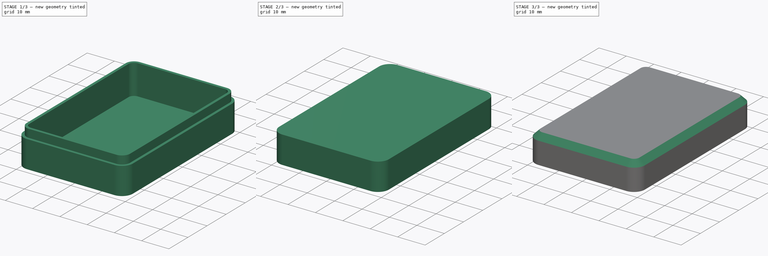
[diagram: build sequence overview — one tinted view per stage of 3, left to right]
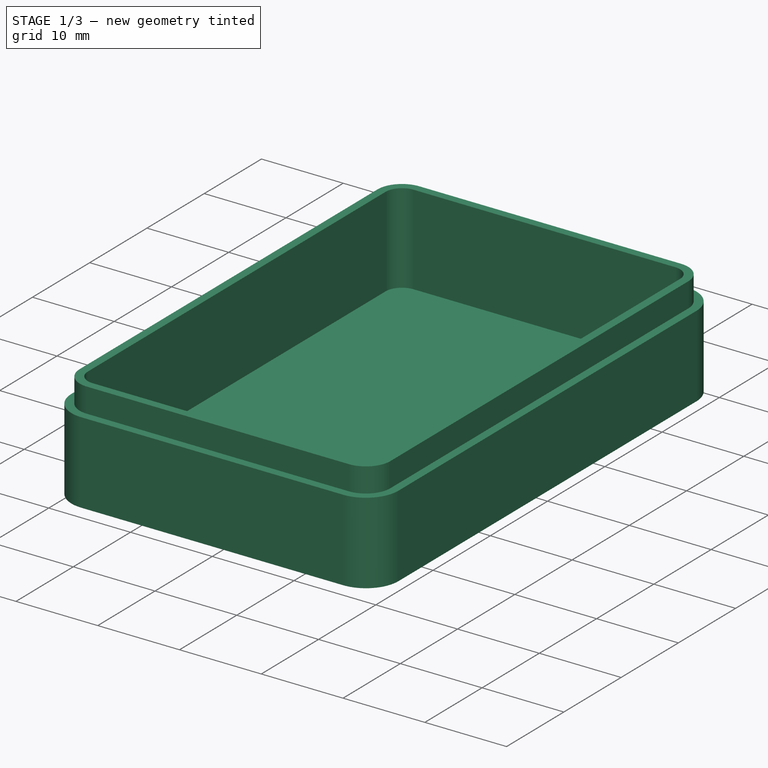
[diagram: stage 1 of 3 — iso view after this stage's code; geometry added in this stage tinted green]
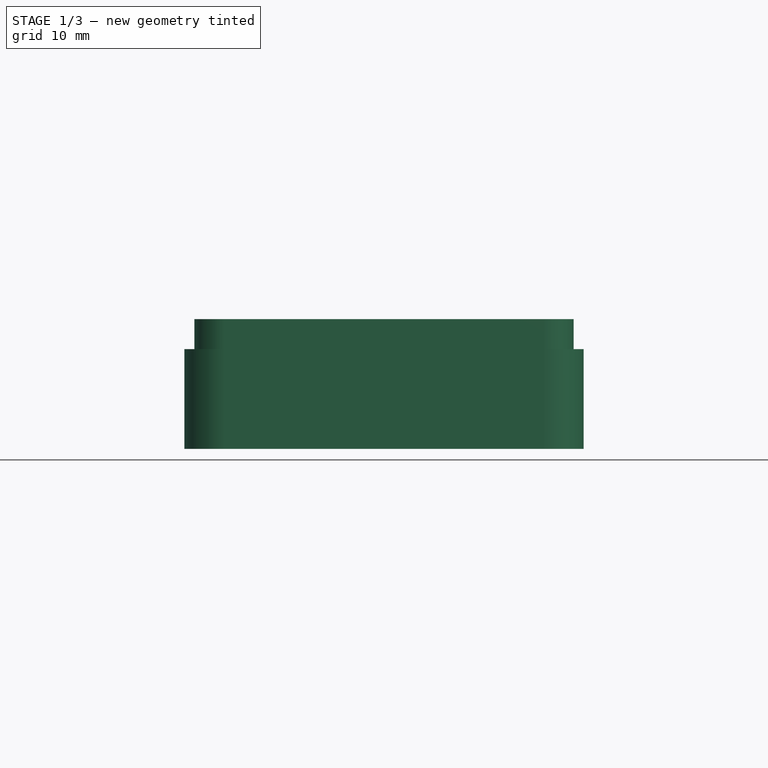
[diagram: stage 1 of 3 — front view after this stage's code; geometry added in this stage tinted green]
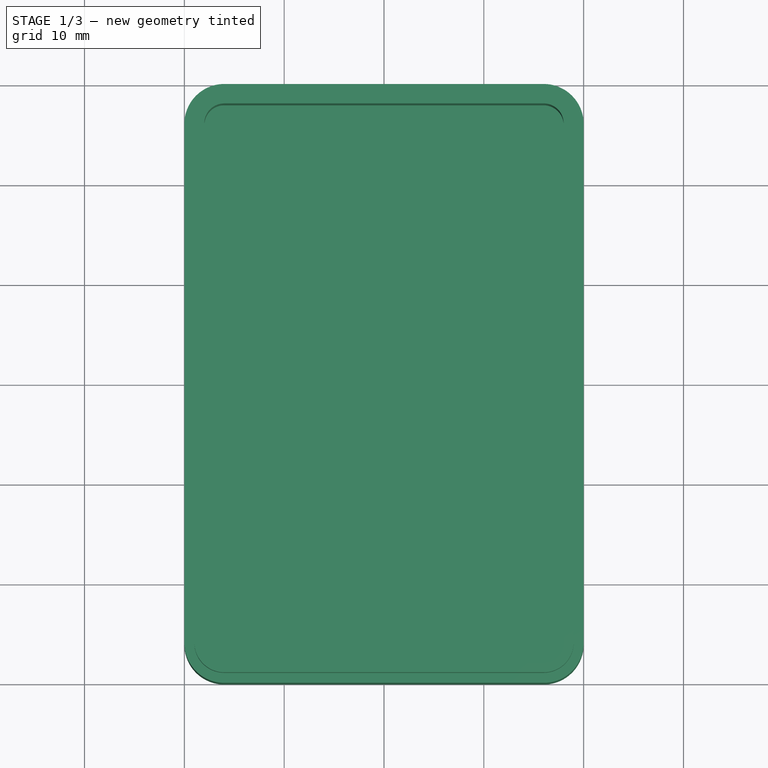
[diagram: stage 1 of 3 — top view after this stage's code; geometry added in this stage tinted green]
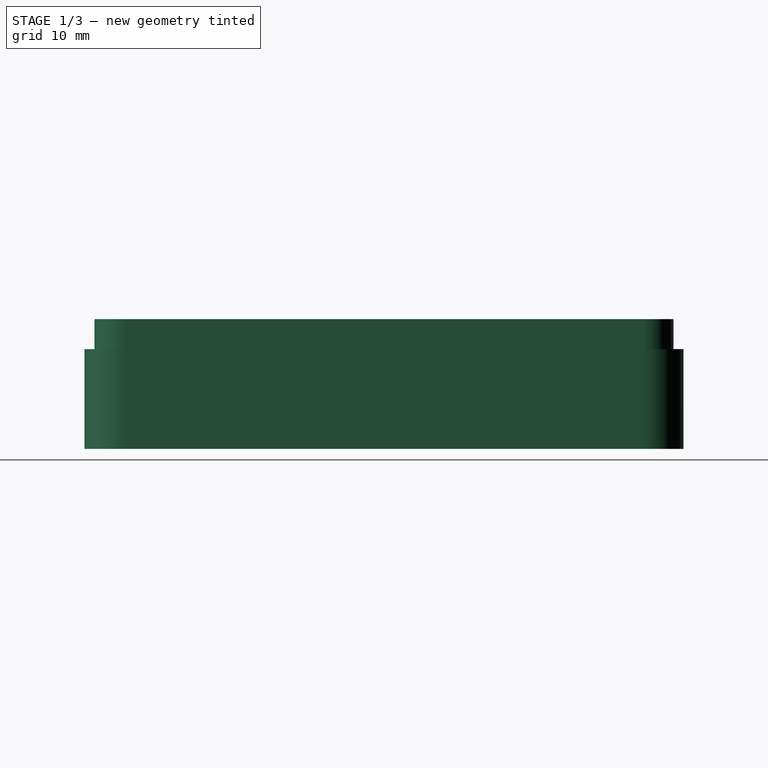
[diagram: stage 1 of 3 — right view after this stage's code; geometry added in this stage tinted green]
FCSTD DOCUMENT  (FreeCAD 1.0R38643 (Git))
Label: keepsake_box
License: All rights reserved
LicenseURL: http://en.wikipedia.org/wiki/All_rights_reserved
objects: Sketcher::SketchObject×5, PartDesign::Pad×3, PartDesign::Pocket×2, PartDesign::Chamfer×2, PartDesign::Body×2, Spreadsheet::Sheet×1, PartDesign::SubShapeBinder×1, PartDesign::Thickness×1
note: 37 computed .brp shape members not serialized (recipe doc carries the construction recipe); baked Part::Feature solids carry a one-line shape summary decoded from their .brp

FEATURE [Spreadsheet::Sheet] Spreadsheet  label="globals"
  cells = A1='Length; B1(length)==60 mm; A2='Width; B2(width)==40 mm; A3='Base Height; B3(base_height)==10 mm; A4='Lid Height; B4(lid_height)==10 mm; A5='Fillet; B5(fillet)==4 mm; A6='Thickness; B6(thickness)==2 mm; A7='Gap; B7(gap)==0.2 mm
FEATURE [Sketcher::SketchObject] Sketch
  ArcFitTolerance = 1e-06
  AttachmentSupport = -> [XY_Plane]
  FullyConstrained = true
  MakeInternals = false
  MapMode = 5
  expr: Constraints[23] = <<globals>>.length
  expr: Constraints[24] = <<globals>>.width
  expr: Constraints[25] = <<globals>>.fillet
  sketch-geometry (12):
    g0: LineSegment StartX=-20 StartY=26 StartZ=0 EndX=-20 EndY=-26 EndZ=0
    g1: LineSegment StartX=-16 StartY=-30 StartZ=0 EndX=16 EndY=-30 EndZ=0
    g2: LineSegment StartX=20 StartY=-26 StartZ=0 EndX=20 EndY=26 EndZ=0
    g3: LineSegment StartX=16 StartY=30 StartZ=0 EndX=-16 EndY=30 EndZ=0
    g4: ArcOfCircle CenterX=-16 CenterY=26 CenterZ=0 NormalX=0 NormalY=0 NormalZ=1 AngleXU=0 Radius=4 StartAngle=1.5708 EndAngle=3.14159
    g5: GeomPoint [constr] X=-20 Y=30 Z=0
    g6: ArcOfCircle CenterX=-16 CenterY=-26 CenterZ=0 NormalX=0 NormalY=0 NormalZ=1 AngleXU=0 Radius=4 StartAngle=3.14159 EndAngle=4.71239
    g7: GeomPoint [constr] X=-20 Y=-30 Z=0
    g8: ArcOfCircle CenterX=16 CenterY=-26 CenterZ=0 NormalX=0 NormalY=0 NormalZ=1 AngleXU=0 Radius=4 StartAngle=4.71239 EndAngle=6.28319
    g9: GeomPoint [constr] X=20 Y=-30 Z=0
    g10: ArcOfCircle CenterX=16 CenterY=26 CenterZ=0 NormalX=0 NormalY=0 NormalZ=1 AngleXU=0 Radius=4 StartAngle=0 EndAngle=1.5708
    g11: GeomPoint [constr] X=20 Y=30 Z=0
  constraints (27):
    c: Vertical(g0)
    c: Vertical(g2)
    c: Horizontal(g1)
    c: Horizontal(g3)
    c: PointOnObject(g5,g0)
    c: PointOnObject(g5,g3)
    c: Tangent(g0,g4) = -1.5708
    c: Tangent(g3,g4) = -1.5708
    c: PointOnObject(g7,g0)
    c: PointOnObject(g7,g1)
    c: Tangent(g0,g6) = -1.5708
    c: Tangent(g1,g6) = -1.5708
    c: PointOnObject(g9,g1)
    c: PointOnObject(g9,g2)
    c: Tangent(g1,g8) = -1.5708
    c: Tangent(g2,g8) = -1.5708
    c: PointOnObject(g11,g2)
    c: PointOnObject(g11,g3)
    c: Tangent(g2,g10) = -1.5708
    c: Tangent(g3,g10) = -1.5708
    c: Equal(g4,g6)
    c: Equal(g4,g8)
    c: Equal(g4,g10)
    c: DistanceY(g1,g3) = 60
    c: DistanceX(g0,g2) = 40
    c: Radius(g4) = 4
    c: Symmetric(g4,g8,g-1)
FEATURE [PartDesign::Pad] Pad
  Direction = (0,0,1)
  Length = 10
  Length2 = 10
  Profile = -> Sketch
  ReferenceAxis = -> Sketch [N_Axis]
  Suppressed = false
  Type = 0
  expr: Length = <<globals>>.base_height
FEATURE [Sketcher::SketchObject] Sketch001
  ArcFitTolerance = 1e-06
  AttachmentOffset = pos=(0,0,10) rot=(0,0,1;0rad)
  AttachmentSupport = -> [XY_Plane]
  FullyConstrained = true
  MakeInternals = false
  MapMode = 5
  Placement = pos=(0,0,10) rot=(0,0,1;0rad)
  expr: .AttachmentOffset.Base.z = <<globals>>.base_height
  expr: .Constraints.lip_fillet = <<globals>>.fillet - <<globals>>.thickness / 2
  expr: .Constraints.lip_length = <<globals>>.length - <<globals>>.thickness
  expr: .Constraints.lip_width = <<globals>>.width - <<globals>>.thickness
  expr: Constraints[42] = <<globals>>.width - 2 * <<globals>>.thickness
  expr: Constraints[44] = <<globals>>.length - 2 * <<globals>>.thickness
  expr: Constraints[45] = <<globals>>.fillet - <<globals>>.thickness
  sketch-geometry (20):
    g0: LineSegment StartX=-19 StartY=26 StartZ=0 EndX=-19 EndY=-26 EndZ=0
    g1: LineSegment StartX=-16 StartY=-29 StartZ=0 EndX=16 EndY=-29 EndZ=0
    g2: LineSegment StartX=19 StartY=-26 StartZ=0 EndX=19 EndY=26 EndZ=0
    g3: LineSegment StartX=16 StartY=29 StartZ=0 EndX=-16 EndY=29 EndZ=0
    g4: ArcOfCircle CenterX=-16 CenterY=26 CenterZ=0 NormalX=0 NormalY=0 NormalZ=1 AngleXU=0 Radius=3 StartAngle=1.5708 EndAngle=3.14159
    g5: ArcOfCircle CenterX=-16 CenterY=-26 CenterZ=0 NormalX=0 NormalY=0 NormalZ=1 AngleXU=0 Radius=3 StartAngle=3.14159 EndAngle=4.71239
    g6: ArcOfCircle CenterX=16 CenterY=-26 CenterZ=0 NormalX=0 NormalY=0 NormalZ=1 AngleXU=0 Radius=3 StartAngle=4.71239 EndAngle=6.28319
    g7: ArcOfCircle CenterX=16 CenterY=26 CenterZ=0 NormalX=0 NormalY=0 NormalZ=1 AngleXU=0 Radius=3 StartAngle=-4.263e-13 EndAngle=1.5708
    g8: GeomPoint [constr] X=-19 Y=29 Z=0
    g9: GeomPoint [constr] X=19 Y=-29 Z=0
    g10: LineSegment StartX=-18 StartY=26 StartZ=0 EndX=-18 EndY=-26 EndZ=0
    g11: LineSegment StartX=-16 StartY=-28 StartZ=0 EndX=16 EndY=-28 EndZ=0
    g12: LineSegment StartX=18 StartY=-26 StartZ=0 EndX=18 EndY=26 EndZ=0
    g13: LineSegment StartX=16 StartY=28 StartZ=0 EndX=-16 EndY=28 EndZ=0
    g14: ArcOfCircle CenterX=-16 CenterY=26 CenterZ=0 NormalX=0 NormalY=0 NormalZ=1 AngleXU=0 Radius=2 StartAngle=1.5708 EndAngle=3.14159
    g15: ArcOfCircle CenterX=-16 CenterY=-26 CenterZ=0 NormalX=0 NormalY=0 NormalZ=1 AngleXU=0 Radius=2 StartAngle=3.14159 EndAngle=4.71239
    g16: ArcOfCircle CenterX=16 CenterY=-26 CenterZ=0 NormalX=0 NormalY=0 NormalZ=1 AngleXU=0 Radius=2 StartAngle=4.71239 EndAngle=6.28319
    g17: ArcOfCircle CenterX=16 CenterY=26 CenterZ=0 NormalX=0 NormalY=0 NormalZ=1 AngleXU=0 Radius=2 StartAngle=-7.19e-14 EndAngle=1.5708
    g18: GeomPoint [constr] X=-18 Y=28 Z=0
    g19: GeomPoint [constr] X=18 Y=-28 Z=0
  constraints (46):
    c: Tangent(g0,g4) = -1.5708
    c: Tangent(g0,g5) = -1.5708
    c: Tangent(g1,g5) = -1.5708
    c: Tangent(g1,g6) = -1.5708
    c: Tangent(g2,g6) = -1.5708
    c: Tangent(g2,g7) = -1.5708
    c: Tangent(g3,g7) = -1.5708
    c: Tangent(g3,g4) = -1.5708
    c: Vertical(g0)
    c: Vertical(g2)
    c: Horizontal(g1)
    c: Horizontal(g3)
    c: Equal(g4,g5)
    c: Equal(g5,g6)
    c: Equal(g6,g7)
    c: PointOnObject(g8,g0)
    c: PointOnObject(g8,g3)
    c: PointOnObject(g9,g1)
    c: PointOnObject(g9,g2)
    c: Symmetric(g4,g6,g-1)
    c: DistanceY(g1,g3) = 58  'lip_length'
    c: DistanceX(g0,g2) = 38  'lip_width'
    c: Radius(g4) = 3  'lip_fillet'
    c: Tangent(g10,g14) = -1.5708
    c: Tangent(g10,g15) = -1.5708
    c: Tangent(g11,g15) = -1.5708
    c: Tangent(g11,g16) = -1.5708
    c: Tangent(g12,g16) = -1.5708
    c: Tangent(g12,g17) = -1.5708
    c: Tangent(g13,g17) = -1.5708
    c: Tangent(g13,g14) = -1.5708
    c: Vertical(g10)
    c: Vertical(g12)
    c: Horizontal(g11)
    c: Horizontal(g13)
    c: Equal(g14,g15)
    c: Equal(g15,g16)
    c: Equal(g16,g17)
    c: PointOnObject(g18,g10)
    c: PointOnObject(g18,g13)
    c: PointOnObject(g19,g11)
    c: PointOnObject(g19,g12)
    c: DistanceX(g10,g12) = 36
    c: Symmetric(g14,g16,g-1)
    c: DistanceY(g11,g13) = 56
    c: Radius(g14) = 2
FEATURE [PartDesign::Pad] Pad001
  BaseFeature = -> Pad
  Direction = (0,0,1)
  Length = 3
  Length2 = 10
  Profile = -> Sketch001
  ReferenceAxis = -> Sketch001 [N_Axis]
  Suppressed = false
  Type = 0
FEATURE [Sketcher::SketchObject] Sketch002
  ArcFitTolerance = 1e-06
  AttachmentSupport = -> [Pad001]
  ExternalGeometry = -> [Pad001]
  FullyConstrained = true
  MakeInternals = false
  MapMode = 5
  Placement = pos=(0,0,10) rot=(0,0,1;0rad)
  sketch-geometry (10):
    g0: LineSegment StartX=18 StartY=-26 StartZ=0 EndX=18 EndY=26 EndZ=0
    g1: LineSegment StartX=16 StartY=28 StartZ=0 EndX=-16 EndY=28 EndZ=0
    g2: LineSegment StartX=-18 StartY=26 StartZ=0 EndX=-18 EndY=-26 EndZ=0
    g3: LineSegment StartX=-16 StartY=-28 StartZ=0 EndX=16 EndY=-28 EndZ=0
    g4: ArcOfCircle CenterX=16 CenterY=-26 CenterZ=0 NormalX=0 NormalY=0 NormalZ=1 AngleXU=0 Radius=2 StartAngle=4.71239 EndAngle=6.28319
    g5: ArcOfCircle CenterX=16 CenterY=26 CenterZ=0 NormalX=0 NormalY=0 NormalZ=1 AngleXU=0 Radius=2 StartAngle=0 EndAngle=1.5708
    g6: ArcOfCircle CenterX=-16 CenterY=26 CenterZ=0 NormalX=0 NormalY=0 NormalZ=1 AngleXU=0 Radius=2 StartAngle=1.5708 EndAngle=3.14159
    g7: ArcOfCircle CenterX=-16 CenterY=-26 CenterZ=0 NormalX=0 NormalY=0 NormalZ=1 AngleXU=0 Radius=2 StartAngle=3.14159 EndAngle=4.71239
    g8: GeomPoint [constr] X=18 Y=-28 Z=0
    g9: GeomPoint [constr] X=-18 Y=28 Z=0
  constraints (23):
    c: Tangent(g0,g4) = -1.5708
    c: Tangent(g0,g5) = -1.5708
    c: Tangent(g1,g5) = -1.5708
    c: Tangent(g1,g6) = -1.5708
    c: Tangent(g2,g6) = -1.5708
    c: Tangent(g2,g7) = -1.5708
    c: Tangent(g3,g7) = -1.5708
    c: Tangent(g3,g4) = -1.5708
    c: Vertical(g0)
    c: Vertical(g2)
    c: Horizontal(g1)
    c: Horizontal(g3)
    c: Equal(g4,g5)
    c: Equal(g5,g6)
    c: Equal(g6,g7)
    c: PointOnObject(g8,g0)
    c: PointOnObject(g8,g3)
    c: PointOnObject(g9,g1)
    c: PointOnObject(g9,g2)
    c: Equal(g-3,g1)
    c: Equal(g-4,g6)
    c: Equal(g-5,g2)
    c: Symmetric(g6,g4,g-1)
FEATURE [PartDesign::Pocket] Pocket
  BaseFeature = -> Pad001
  Direction = (0,0,-1)
  Length = 8
  Length2 = 5
  Profile = -> Sketch002
  ReferenceAxis = -> Sketch002 [N_Axis]
  Suppressed = false
  Type = 0
  expr: Length = <<globals>>.base_height - <<globals>>.thickness
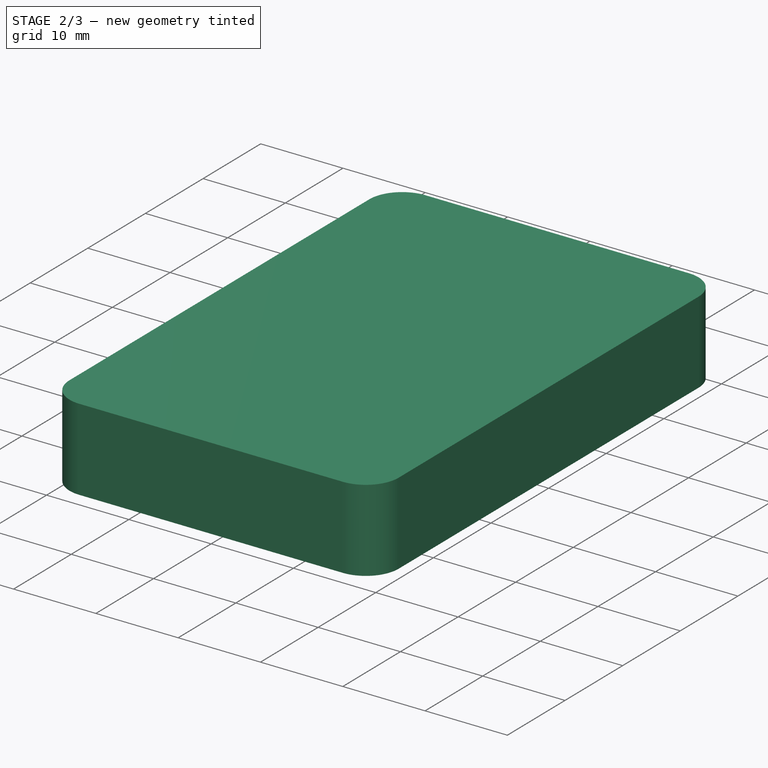
[diagram: stage 2 of 3 — iso view after this stage's code; geometry added in this stage tinted green]
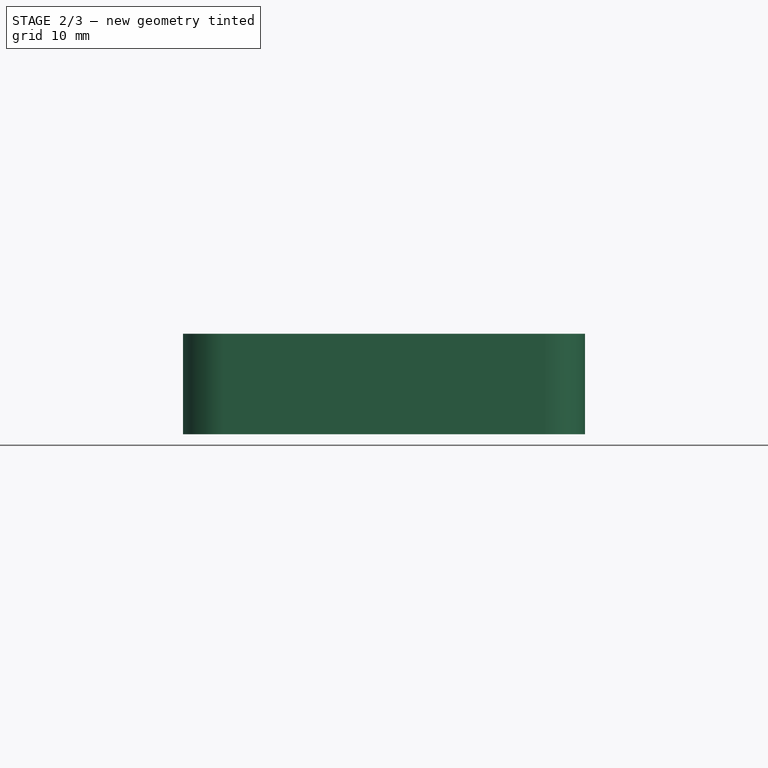
[diagram: stage 2 of 3 — front view after this stage's code; geometry added in this stage tinted green]
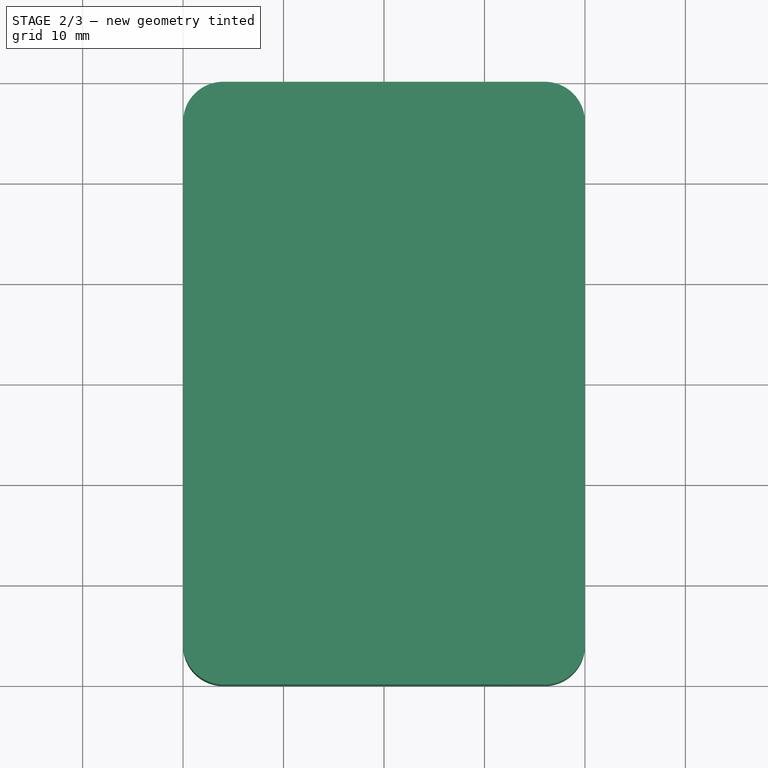
[diagram: stage 2 of 3 — top view after this stage's code; geometry added in this stage tinted green]
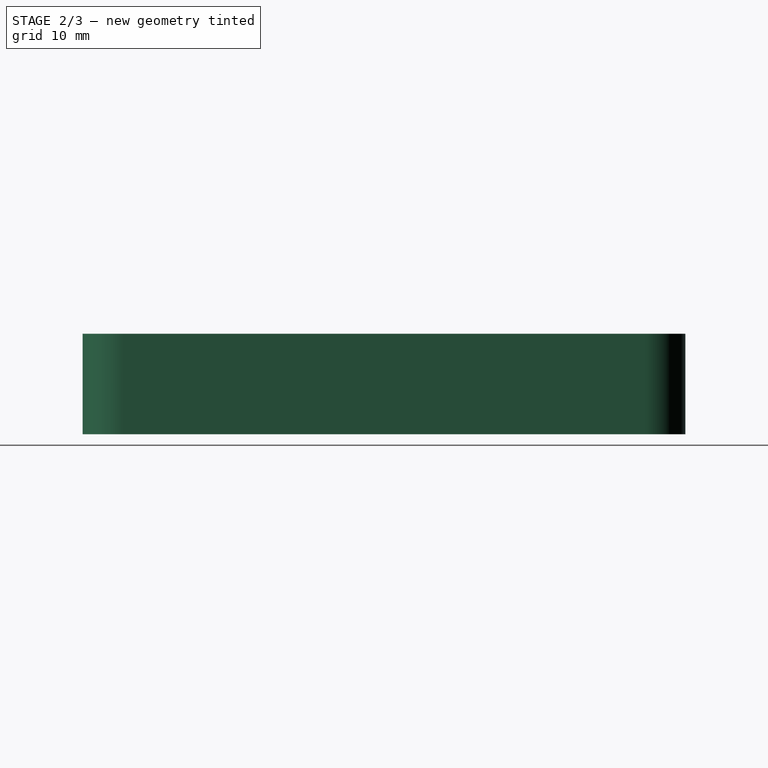
[diagram: stage 2 of 3 — right view after this stage's code; geometry added in this stage tinted green]
FEATURE [PartDesign::SubShapeBinder] Binder
  BindCopyOnChange = 0
  BindMode = 0
  ClaimChildren = false
  Context = -> Body001 [Binder.]
  Fuse = false
  MakeFace = true
  OffsetFill = false
  OffsetIntersection = false
  OffsetJoinType = 0
  OffsetOpenResult = false
  PartialLoad = false
  Relative = true
  Support = -> [Body]
  _Version = 2
FEATURE [Sketcher::SketchObject] Sketch003
  ArcFitTolerance = 1e-06
  AttachmentOffset = pos=(0,0,10.2) rot=(0,0,1;0rad)
  AttachmentSupport = -> [XY_Plane001]
  ExternalGeometry = -> [Binder]
  FullyConstrained = true
  MakeInternals = false
  MapMode = 5
  Placement = pos=(0,0,10.2) rot=(0,0,1;0rad)
  expr: .AttachmentOffset.Base.z = <<globals>>.base_height + <<globals>>.gap
  sketch-geometry (10):
    g0: LineSegment StartX=-20 StartY=26 StartZ=0 EndX=-20 EndY=-26 EndZ=0
    g1: LineSegment StartX=-16 StartY=-30 StartZ=0 EndX=16 EndY=-30 EndZ=0
    g2: LineSegment StartX=20 StartY=-26 StartZ=0 EndX=20 EndY=26 EndZ=0
    g3: LineSegment StartX=16 StartY=30 StartZ=0 EndX=-16 EndY=30 EndZ=0
    g4: ArcOfCircle CenterX=-16 CenterY=26 CenterZ=0 NormalX=0 NormalY=0 NormalZ=1 AngleXU=0 Radius=4 StartAngle=1.5708 EndAngle=3.14159
    g5: ArcOfCircle CenterX=-16 CenterY=-26 CenterZ=0 NormalX=0 NormalY=0 NormalZ=1 AngleXU=0 Radius=4 StartAngle=3.14159 EndAngle=4.71239
    g6: ArcOfCircle CenterX=16 CenterY=-26 CenterZ=0 NormalX=0 NormalY=0 NormalZ=1 AngleXU=0 Radius=4 StartAngle=4.71239 EndAngle=6.28319
    g7: ArcOfCircle CenterX=16 CenterY=26 CenterZ=0 NormalX=0 NormalY=0 NormalZ=1 AngleXU=0 Radius=4 StartAngle=3e-16 EndAngle=1.5708
    g8: GeomPoint [constr] X=-20 Y=30 Z=0
    g9: GeomPoint [constr] X=20 Y=-30 Z=0
  constraints (23):
    c: Tangent(g0,g4) = -1.5708
    c: Tangent(g0,g5) = -1.5708
    c: Tangent(g1,g5) = -1.5708
    c: Tangent(g1,g6) = -1.5708
    c: Tangent(g2,g6) = -1.5708
    c: Tangent(g2,g7) = -1.5708
    c: Tangent(g3,g7) = -1.5708
    c: Tangent(g3,g4) = -1.5708
    c: Vertical(g0)
    c: Vertical(g2)
    c: Horizontal(g1)
    c: Horizontal(g3)
    c: Equal(g4,g5)
    c: Equal(g5,g6)
    c: Equal(g6,g7)
    c: PointOnObject(g8,g0)
    c: PointOnObject(g8,g3)
    c: PointOnObject(g9,g1)
    c: PointOnObject(g9,g2)
    c: Equal(g3,g-3)
    c: Equal(g4,g-4)
    c: Equal(g0,g-5)
    c: Symmetric(g4,g6,g-1)
FEATURE [PartDesign::Pad] Pad002
  Direction = (0,0,1)
  Length = 10
  Length2 = 10
  Profile = -> Sketch003
  ReferenceAxis = -> Sketch003 [N_Axis]
  Suppressed = false
  Type = 0
  expr: Length = <<globals>>.lid_height
FEATURE [PartDesign::Body] Body001  label="lid"
  AllowCompound = false
  Group = -> [Binder,Sketch003,Pad002,Thickness,Sketch004,Pocket001,Chamfer]
  Origin = -> Origin001
  Tip = -> Chamfer
FEATURE [PartDesign::Chamfer] Chamfer001
  Angle = 45
  Base = -> Pocket [Edge9,Edge11,Edge12,Edge13,Edge14,Edge15,Edge6,Edge3]
  BaseFeature = -> Pocket
  ChamferType = 0
  FlipDirection = false
  Size = 2
  Size2 = 1
  SupportTransform = false
  Suppressed = false
  UseAllEdges = false
FEATURE [PartDesign::Body] Body  label="base"
  AllowCompound = false
  Group = -> [Sketch,Pad,Sketch001,Pad001,Sketch002,Pocket,Chamfer001]
  Origin = -> Origin
  Tip = -> Chamfer001
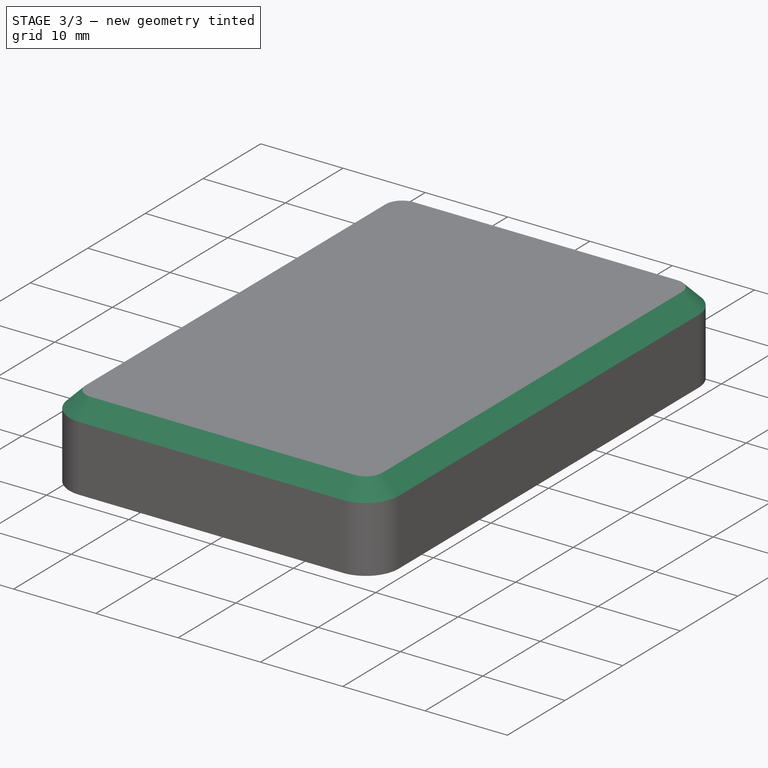
[diagram: stage 3 of 3 — iso view after this stage's code; geometry added in this stage tinted green]
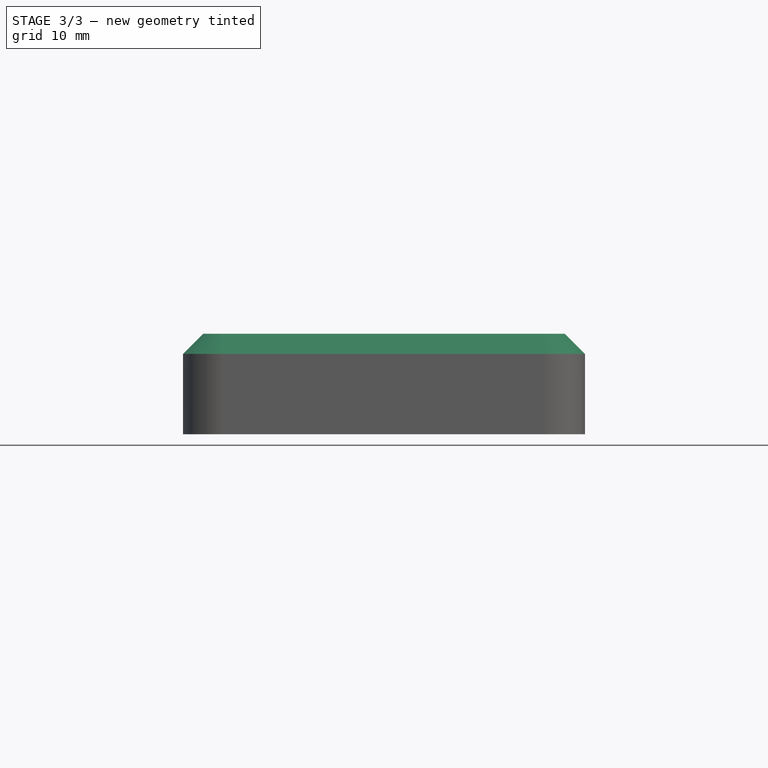
[diagram: stage 3 of 3 — front view after this stage's code; geometry added in this stage tinted green]
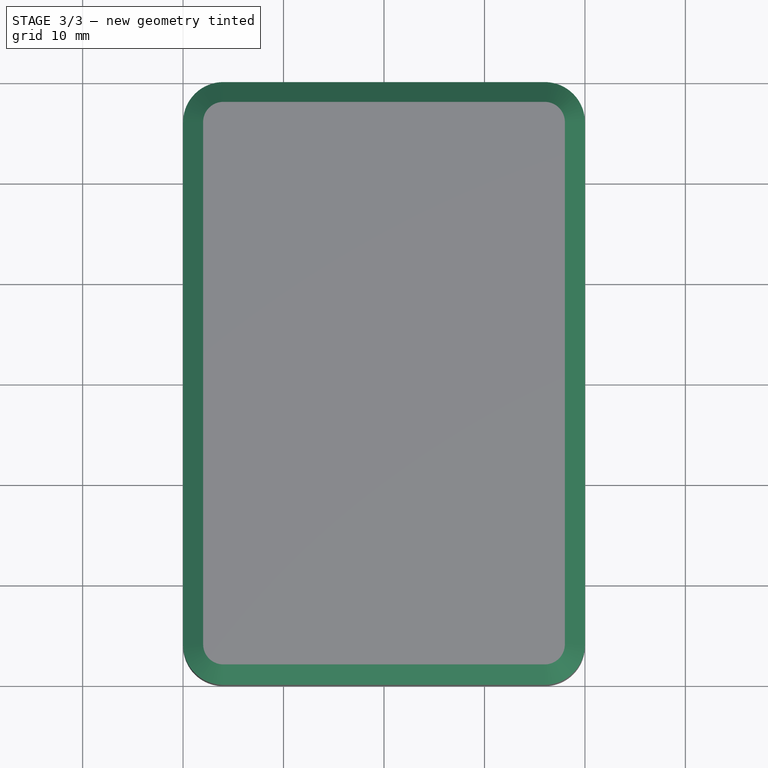
[diagram: stage 3 of 3 — top view after this stage's code; geometry added in this stage tinted green]
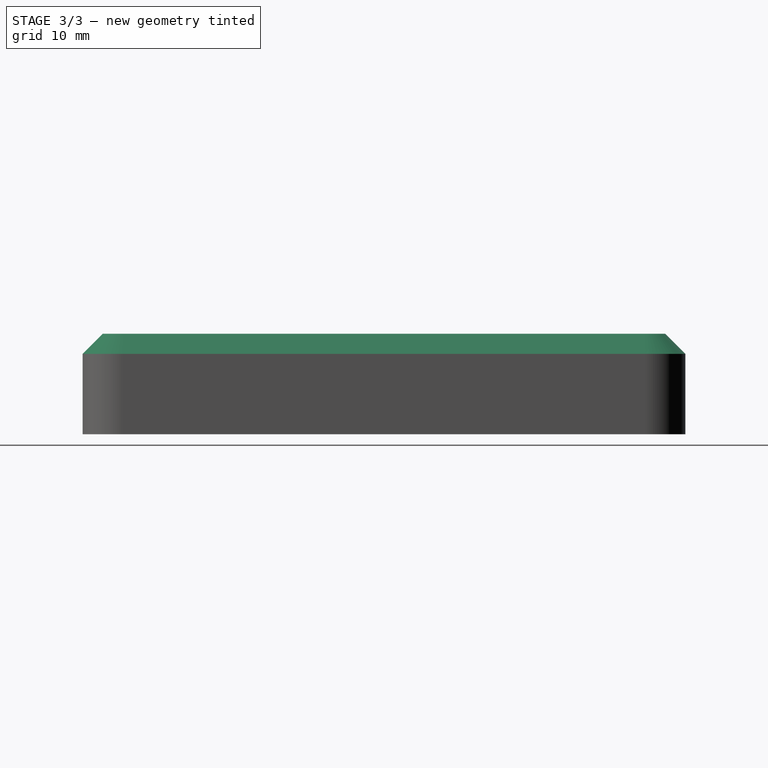
[diagram: stage 3 of 3 — right view after this stage's code; geometry added in this stage tinted green]
FEATURE [PartDesign::Thickness] Thickness
  Base = -> Pad002 [Face9]
  BaseFeature = -> Pad002
  Intersection = false
  Join = 0
  Mode = 0
  Reversed = true
  SupportTransform = false
  Suppressed = false
  Value = 2
  expr: Value = <<globals>>.thickness
FEATURE [Sketcher::SketchObject] Sketch004
  ArcFitTolerance = 1e-06
  AttachmentSupport = -> [Thickness]
  FullyConstrained = true
  MakeInternals = false
  MapMode = 5
  Placement = pos=(0,0,10.2) rot=(1,0,0;3.14159rad)
  expr: Constraints[20] = Sketch001.Constraints.lip_width + 2 * <<globals>>.gap
  expr: Constraints[21] = Sketch001.Constraints.lip_length + 2 * <<globals>>.gap
  expr: Constraints[22] = Sketch001.Constraints.lip_fillet + <<globals>>.gap
  sketch-geometry (10):
    g0: LineSegment StartX=-19.2 StartY=26 StartZ=0 EndX=-19.2 EndY=-26 EndZ=0
    g1: LineSegment StartX=-16 StartY=-29.2 StartZ=0 EndX=16 EndY=-29.2 EndZ=0
    g2: LineSegment StartX=19.2 StartY=-26 StartZ=0 EndX=19.2 EndY=26 EndZ=0
    g3: LineSegment StartX=16 StartY=29.2 StartZ=0 EndX=-16 EndY=29.2 EndZ=0
    g4: ArcOfCircle CenterX=-16 CenterY=26 CenterZ=0 NormalX=0 NormalY=0 NormalZ=1 AngleXU=0 Radius=3.2 StartAngle=1.5708 EndAngle=3.14159
    g5: ArcOfCircle CenterX=-16 CenterY=-26 CenterZ=0 NormalX=0 NormalY=0 NormalZ=1 AngleXU=0 Radius=3.2 StartAngle=3.14159 EndAngle=4.71239
    g6: ArcOfCircle CenterX=16 CenterY=-26 CenterZ=0 NormalX=0 NormalY=0 NormalZ=1 AngleXU=0 Radius=3.2 StartAngle=4.71239 EndAngle=6.28319
    g7: ArcOfCircle CenterX=16 CenterY=26 CenterZ=0 NormalX=0 NormalY=0 NormalZ=1 AngleXU=0 Radius=3.2 StartAngle=0 EndAngle=1.5708
    g8: GeomPoint [constr] X=-19.2 Y=29.2 Z=0
    g9: GeomPoint [constr] X=19.2 Y=-29.2 Z=0
  constraints (23):
    c: Tangent(g0,g4) = -1.5708
    c: Tangent(g0,g5) = -1.5708
    c: Tangent(g1,g5) = -1.5708
    c: Tangent(g1,g6) = -1.5708
    c: Tangent(g2,g6) = -1.5708
    c: Tangent(g2,g7) = -1.5708
    c: Tangent(g3,g7) = -1.5708
    c: Tangent(g3,g4) = -1.5708
    c: Vertical(g0)
    c: Vertical(g2)
    c: Horizontal(g1)
    c: Horizontal(g3)
    c: Equal(g4,g5)
    c: Equal(g5,g6)
    c: Equal(g6,g7)
    c: PointOnObject(g8,g0)
    c: PointOnObject(g8,g3)
    c: PointOnObject(g9,g1)
    c: PointOnObject(g9,g2)
    c: Symmetric(g4,g6,g-1)
    c: DistanceX(g0,g2) = 38.4
    c: DistanceY(g1,g3) = 58.4
    c: Radius(g4) = 3.2
FEATURE [PartDesign::Pocket] Pocket001
  BaseFeature = -> Thickness
  Direction = (0,0,1)
  Length = 3
  Length2 = 5
  Profile = -> Sketch004
  ReferenceAxis = -> Sketch004 [N_Axis]
  Suppressed = false
  Type = 0
  expr: Length = Pad001.Length
FEATURE [PartDesign::Chamfer] Chamfer
  Angle = 45
  Base = -> Pocket001 [Edge4,Edge10,Edge24,Edge25,Edge26,Edge27,Edge28,Edge7]
  BaseFeature = -> Pocket001
  ChamferType = 0
  FlipDirection = false
  Size = 2
  Size2 = 1
  SupportTransform = false
  Suppressed = false
  UseAllEdges = false
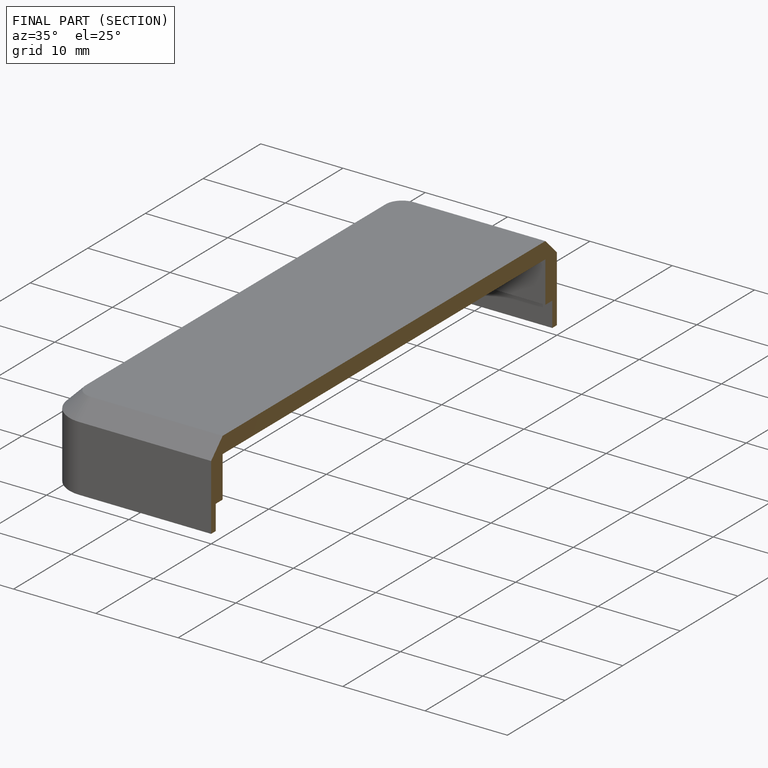
[diagram: finished part — half-section view (interior)]
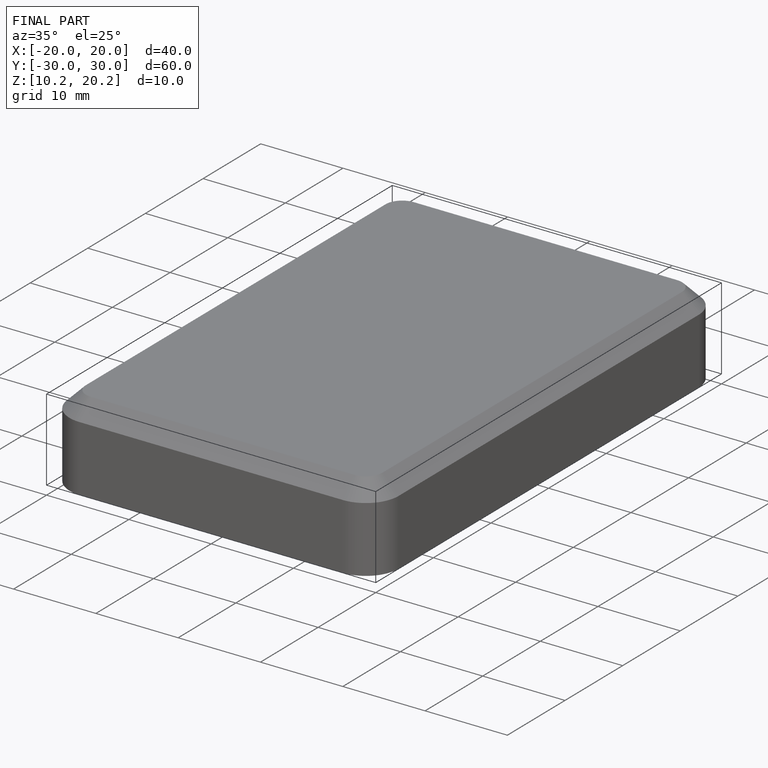
[diagram: finished part — iso view with bounding-box wireframe]
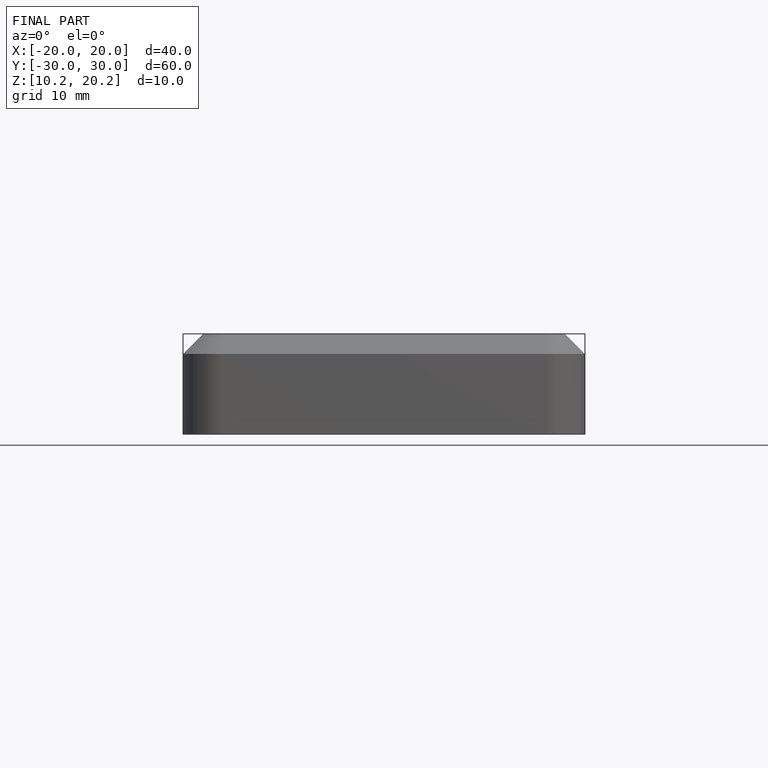
[diagram: finished part — front view with bounding-box wireframe]
